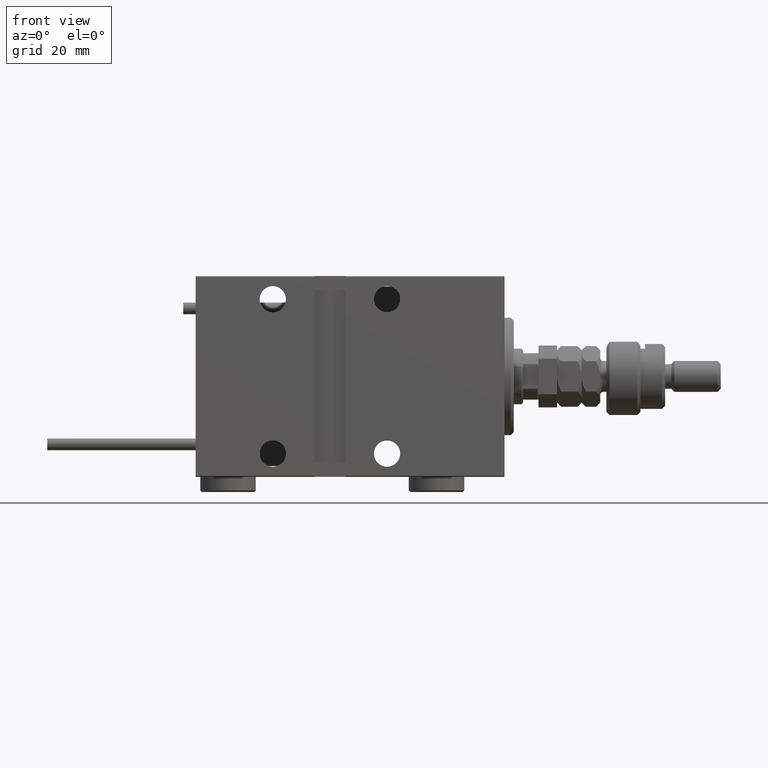
[diagram: clean part render]
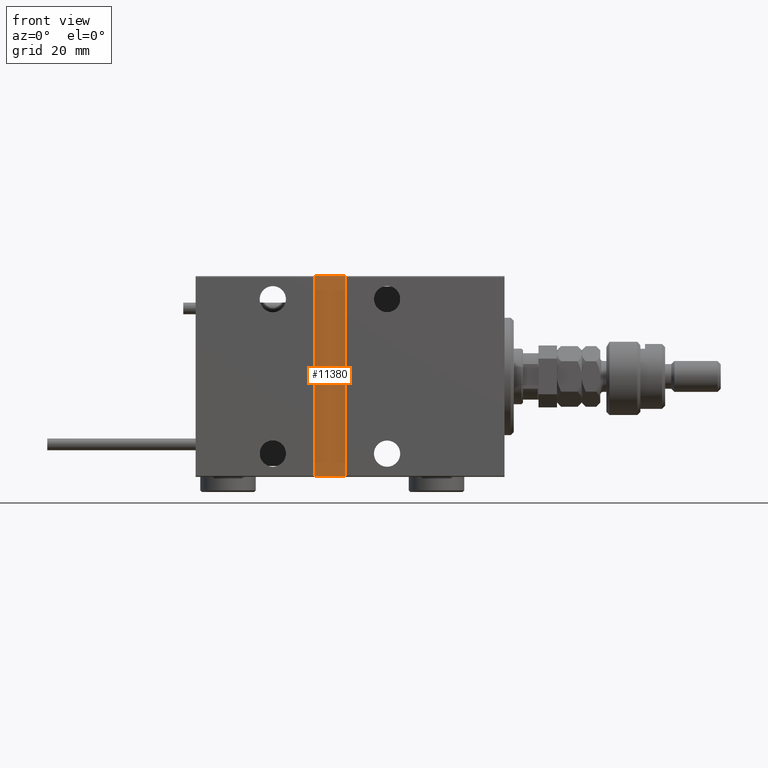
[diagram: same view with one face highlighted and labeled with its STEP entity id]
A machine part, front view. The second image highlights one B-rep face of the part: STEP entity #11380.
In plain terms, the highlighted planar face has unit normal (-0, 1, -0).
Its self-contained STEP definition (entity closure, byte-faithful):
#957 = CARTESIAN_POINT ( 'NONE',  ( 51.50000000000000711, 20.50000000000000355, -32.49999999999995737 ) ) ;
#1602 = LINE ( 'NONE', #4898, #7717 ) ;
#3723 = EDGE_CURVE ( 'NONE', #11082, #18075, #1602, .T. ) ;
#3744 = DIRECTION ( 'NONE',  ( 0.000000000000000000, -1.000000000000000000, -1.067522139062650918E-16 ) ) ;
#4898 = CARTESIAN_POINT ( 'NONE',  ( 61.50000000000001421, 20.50000000000000355, -32.49999999999995737 ) ) ;
#5493 = CARTESIAN_POINT ( 'NONE',  ( 51.50000000000000711, 20.49999999999999645, 32.50000000000000711 ) ) ;
#5706 = DIRECTION ( 'NONE',  ( -1.000000000000000000, 0.000000000000000000, 0.000000000000000000 ) ) ;
#7717 = VECTOR ( 'NONE', #5706, 1000.000000000000000 ) ;
#9234 = CARTESIAN_POINT ( 'NONE',  ( 61.50000000000001421, 20.49999999999999645, 32.50000000000000711 ) ) ;
#11082 = VERTEX_POINT ( 'NONE', #12552 ) ;
#11380 = ADVANCED_FACE ( 'NONE', ( #49833 ), #16859, .F. ) ;
#11806 = VECTOR ( 'NONE', #46150, 1000.000000000000000 ) ;
#11886 = ORIENTED_EDGE ( 'NONE', *, *, #53457, .T. ) ;
#12552 = CARTESIAN_POINT ( 'NONE',  ( 61.50000000000001421, 20.50000000000000711, -32.50000000000000000 ) ) ;
#13510 = EDGE_LOOP ( 'NONE', ( #13701, #11886, #18579, #34613 ) ) ;
#13701 = ORIENTED_EDGE ( 'NONE', *, *, #30835, .T. ) ;
#16795 = DIRECTION ( 'NONE',  ( 1.000000000000000000, -0.000000000000000000, -0.000000000000000000 ) ) ;
#16859 = PLANE ( 'NONE',  #28749 ) ;
#18075 = VERTEX_POINT ( 'NONE', #957 ) ;
#18579 = ORIENTED_EDGE ( 'NONE', *, *, #38623, .T. ) ;
#19613 = LINE ( 'NONE', #49032, #39135 ) ;
#20450 = DIRECTION ( 'NONE',  ( 0.000000000000000000, 1.067522139062650918E-16, -1.000000000000000000 ) ) ;
#28749 = AXIS2_PLACEMENT_3D ( 'NONE', #33636, #3744, #20450 ) ;
#29720 = LINE ( 'NONE', #50843, #30650 ) ;
#30650 = VECTOR ( 'NONE', #16795, 1000.000000000000000 ) ;
#30835 = EDGE_CURVE ( 'NONE', #18075, #48329, #19613, .T. ) ;
#33528 = LINE ( 'NONE', #50256, #11806 ) ;
#33636 = CARTESIAN_POINT ( 'NONE',  ( 0.000000000000000000, 20.49999999999999645, 2.149601398203428657E-15 ) ) ;
#34613 = ORIENTED_EDGE ( 'NONE', *, *, #3723, .T. ) ;
#36789 = VERTEX_POINT ( 'NONE', #9234 ) ;
#38623 = EDGE_CURVE ( 'NONE', #36789, #11082, #33528, .T. ) ;
#39135 = VECTOR ( 'NONE', #44100, 1000.000000000000000 ) ;
#44100 = DIRECTION ( 'NONE',  ( 0.000000000000000000, -1.067522139062650918E-16, 1.000000000000000000 ) ) ;
#46150 = DIRECTION ( 'NONE',  ( -0.000000000000000000, 1.067522139062650918E-16, -1.000000000000000000 ) ) ;
#48329 = VERTEX_POINT ( 'NONE', #5493 ) ;
#49032 = CARTESIAN_POINT ( 'NONE',  ( 51.50000000000000711, 20.50000000000000355, -32.49999999999995737 ) ) ;
#49833 = FACE_OUTER_BOUND ( 'NONE', #13510, .T. ) ;
#50256 = CARTESIAN_POINT ( 'NONE',  ( 61.50000000000001421, 20.50000000000000355, -32.49999999999995737 ) ) ;
#50843 = CARTESIAN_POINT ( 'NONE',  ( 61.50000000000001421, 20.49999999999999645, 32.50000000000000711 ) ) ;
#53457 = EDGE_CURVE ( 'NONE', #48329, #36789, #29720, .T. ) ;